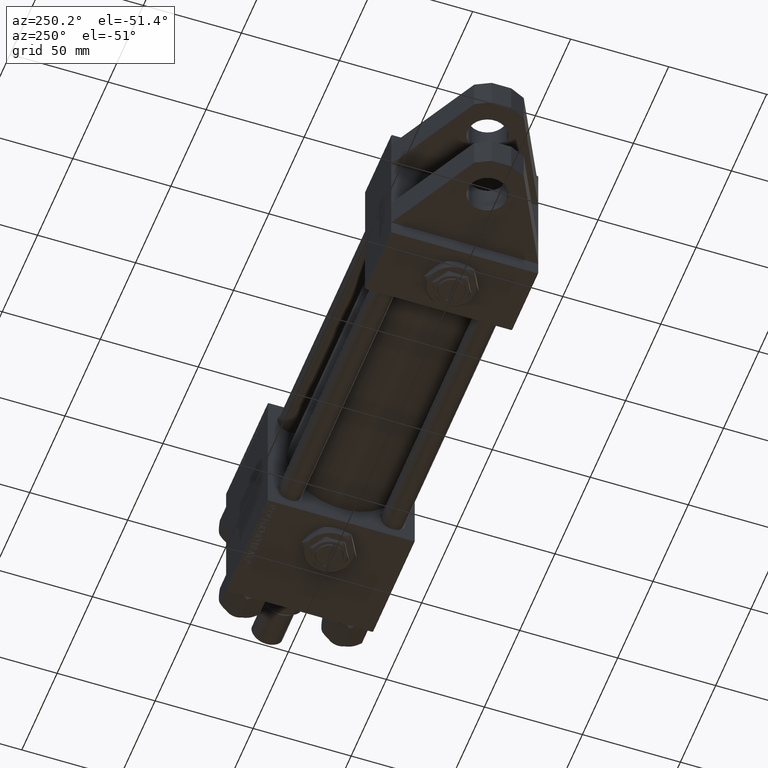
[diagram: clean part render]
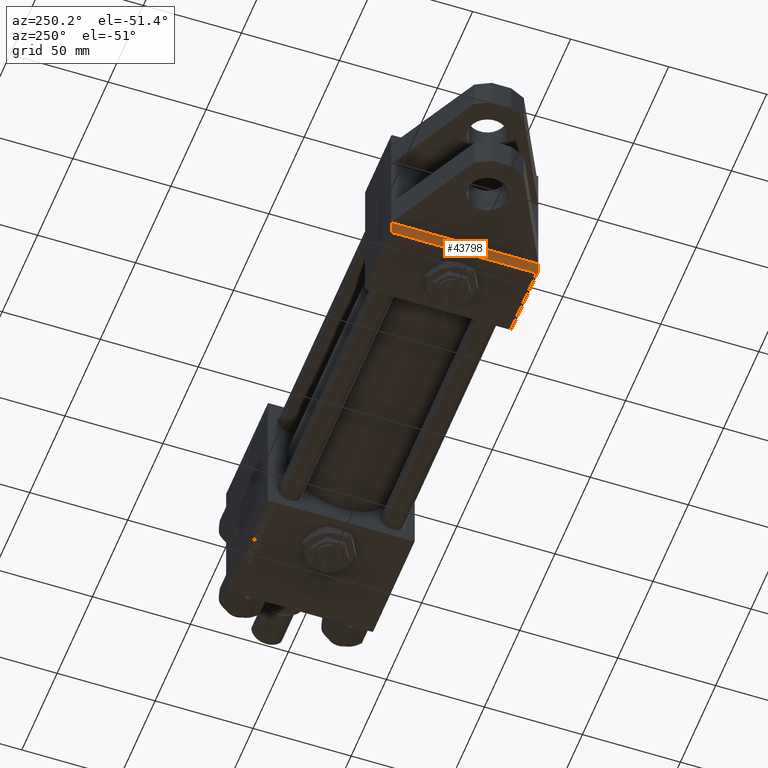
[diagram: same view with one face highlighted and labeled with its STEP entity id]
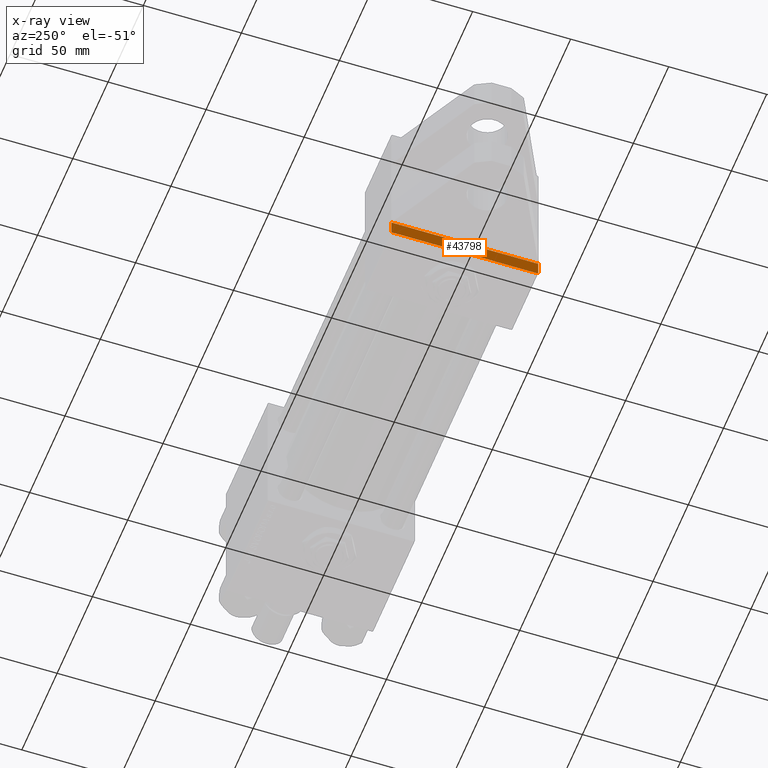
[diagram: x-ray of the same camera — body ghosted, the highlighted face saturated]
A machine part, auxiliary view. The second image highlights one B-rep face of the part: STEP entity #43798.
The next image is the same camera in x-ray: the body ghosted, the highlighted face saturated — about 0% of this face is hidden behind the body in this view.
In plain terms, the highlighted planar face has unit normal (-1, 0, -0).
Its self-contained STEP definition (entity closure, byte-faithful):
#35 = ORIENTED_EDGE ( 'NONE', *, *, #12922, .T. ) ;
#186 = CARTESIAN_POINT ( 'NONE',  ( 0.000000000000000000, 37.49999999999999289, 37.00000000000000000 ) ) ;
#550 = CARTESIAN_POINT ( 'NONE',  ( 0.000000000000000000, 37.49999999999999289, 37.50000000000000000 ) ) ;
#2052 = CARTESIAN_POINT ( 'NONE',  ( 0.000000000000000000, 36.99999999999999289, 37.50000000000000000 ) ) ;
#4926 = EDGE_CURVE ( 'NONE', #40694, #18676, #39454, .T. ) ;
#7586 = VERTEX_POINT ( 'NONE', #186 ) ;
#8096 = LINE ( 'NONE', #31856, #31975 ) ;
#9632 = LINE ( 'NONE', #42874, #45548 ) ;
#11622 = DIRECTION ( 'NONE',  ( 0.000000000000000000, 0.000000000000000000, -1.000000000000000000 ) ) ;
#11793 = ORIENTED_EDGE ( 'NONE', *, *, #17240, .T. ) ;
#12922 = EDGE_CURVE ( 'NONE', #7586, #40694, #40383, .T. ) ;
#13178 = VECTOR ( 'NONE', #11622, 1000.000000000000000 ) ;
#15288 = VERTEX_POINT ( 'NONE', #38927 ) ;
#17240 = EDGE_CURVE ( 'NONE', #50886, #7586, #39474, .T. ) ;
#17245 = VECTOR ( 'NONE', #31542, 1000.000000000000114 ) ;
#17948 = DIRECTION ( 'NONE',  ( -1.000000000000000000, 0.000000000000000000, -0.000000000000000000 ) ) ;
#18219 = DIRECTION ( 'NONE',  ( -0.000000000000000000, 0.000000000000000000, 1.000000000000000000 ) ) ;
#18676 = VERTEX_POINT ( 'NONE', #43994 ) ;
#21411 = ORIENTED_EDGE ( 'NONE', *, *, #39901, .T. ) ;
#23013 = VECTOR ( 'NONE', #44231, 1000.000000000000114 ) ;
#23538 = ORIENTED_EDGE ( 'NONE', *, *, #44899, .F. ) ;
#24205 = DIRECTION ( 'NONE',  ( 0.000000000000000000, -1.000000000000000000, -9.251858538542972814E-17 ) ) ;
#27172 = PLANE ( 'NONE',  #43581 ) ;
#27590 = CARTESIAN_POINT ( 'NONE',  ( 0.000000000000000000, 37.24999999999998579, -37.24999999999998579 ) ) ;
#28766 = DIRECTION ( 'NONE',  ( 0.000000000000000000, 0.000000000000000000, -1.000000000000000000 ) ) ;
#31542 = DIRECTION ( 'NONE',  ( -0.000000000000000000, -0.7071067811865474617, -0.7071067811865474617 ) ) ;
#31856 = CARTESIAN_POINT ( 'NONE',  ( 0.000000000000000000, 37.49999999999999289, -37.50000000000000000 ) ) ;
#31975 = VECTOR ( 'NONE', #24205, 1000.000000000000000 ) ;
#31994 = VERTEX_POINT ( 'NONE', #37701 ) ;
#32715 = CARTESIAN_POINT ( 'NONE',  ( 0.000000000000000000, 30.00000000000000000, 37.49999999999999289 ) ) ;
#35366 = CARTESIAN_POINT ( 'NONE',  ( 0.000000000000000000, 37.49999999999999289, -36.99999999999998579 ) ) ;
#36889 = ORIENTED_EDGE ( 'NONE', *, *, #51296, .F. ) ;
#36930 = LINE ( 'NONE', #32715, #47848 ) ;
#37701 = CARTESIAN_POINT ( 'NONE',  ( 0.000000000000000000, 30.00000000000000000, -37.50000000000000711 ) ) ;
#38011 = CARTESIAN_POINT ( 'NONE',  ( 0.000000000000000000, 0.000000000000000000, 0.000000000000000000 ) ) ;
#38307 = ORIENTED_EDGE ( 'NONE', *, *, #4926, .T. ) ;
#38647 = DIRECTION ( 'NONE',  ( 0.000000000000000000, -1.000000000000000000, -9.251858538542971581E-17 ) ) ;
#38927 = CARTESIAN_POINT ( 'NONE',  ( 0.000000000000000000, 30.00000000000000000, 37.50000000000000000 ) ) ;
#39454 = LINE ( 'NONE', #27590, #17245 ) ;
#39474 = LINE ( 'NONE', #48196, #23013 ) ;
#39901 = EDGE_CURVE ( 'NONE', #18676, #31994, #8096, .T. ) ;
#40383 = LINE ( 'NONE', #550, #13178 ) ;
#40694 = VERTEX_POINT ( 'NONE', #35366 ) ;
#42874 = CARTESIAN_POINT ( 'NONE',  ( 0.000000000000000000, 37.49999999999999289, 37.50000000000000000 ) ) ;
#43581 = AXIS2_PLACEMENT_3D ( 'NONE', #38011, #17948, #18219 ) ;
#43798 = ADVANCED_FACE ( 'NONE', ( #50143 ), #27172, .T. ) ;
#43994 = CARTESIAN_POINT ( 'NONE',  ( 0.000000000000000000, 36.99999999999997868, -37.50000000000000000 ) ) ;
#44231 = DIRECTION ( 'NONE',  ( 0.000000000000000000, 0.7071067811865474617, -0.7071067811865474617 ) ) ;
#44899 = EDGE_CURVE ( 'NONE', #15288, #31994, #36930, .T. ) ;
#44974 = EDGE_LOOP ( 'NONE', ( #23538, #36889, #11793, #35, #38307, #21411 ) ) ;
#45548 = VECTOR ( 'NONE', #38647, 1000.000000000000000 ) ;
#47848 = VECTOR ( 'NONE', #28766, 1000.000000000000000 ) ;
#48196 = CARTESIAN_POINT ( 'NONE',  ( 0.000000000000000000, 37.24999999999999289, 37.24999999999999289 ) ) ;
#50143 = FACE_OUTER_BOUND ( 'NONE', #44974, .T. ) ;
#50886 = VERTEX_POINT ( 'NONE', #2052 ) ;
#51296 = EDGE_CURVE ( 'NONE', #50886, #15288, #9632, .T. ) ;